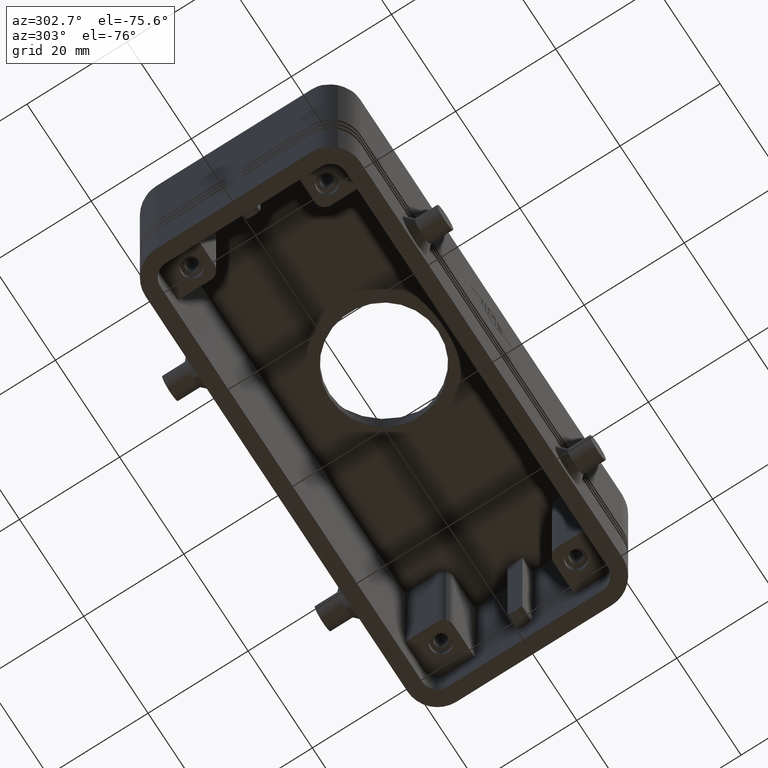
[diagram: clean part render]
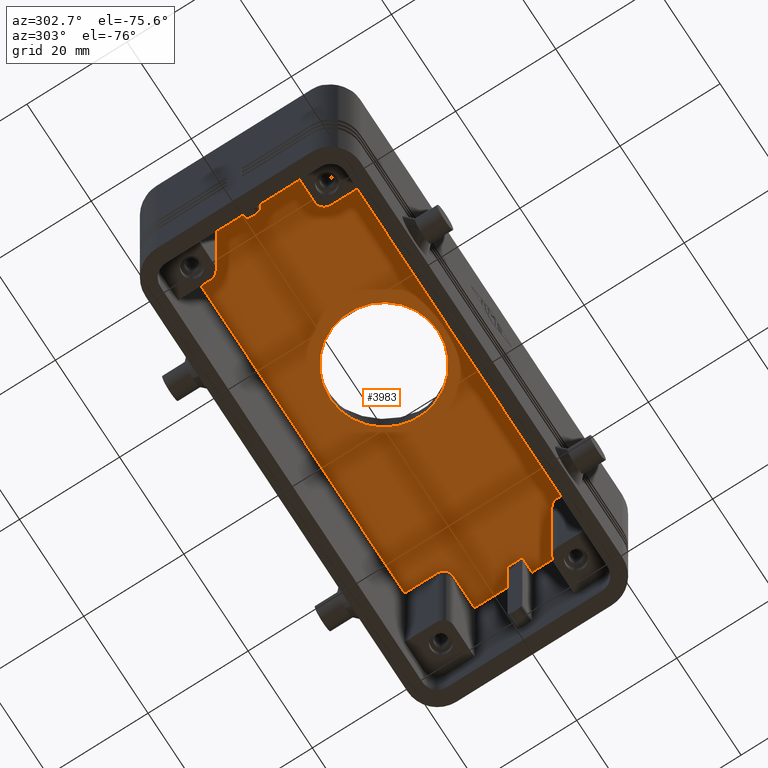
[diagram: same view with one face highlighted and labeled with its STEP entity id]
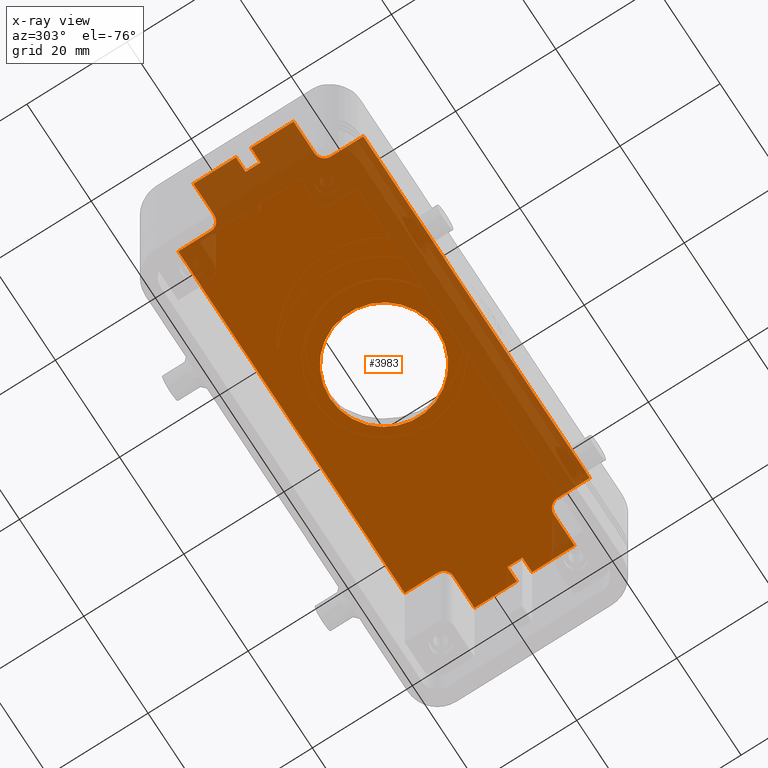
[diagram: x-ray of the same camera — body ghosted, the highlighted face saturated]
A machine part, auxiliary view. The second image highlights one B-rep face of the part: STEP entity #3983.
The next image is the same camera in x-ray: the body ghosted, the highlighted face saturated — about 27% of this face is hidden behind the body in this view.
In plain terms, the highlighted planar face has unit normal (0, 0, 1).
Its self-contained STEP definition (entity closure, byte-faithful):
#1688=CARTESIAN_POINT('',(35.835786437626908,10.585786437626910,41.999999999999993));
#1689=VERTEX_POINT('',#1688);
#1705=CARTESIAN_POINT('',(37.250000000000007,10.0,41.999999999999993));
#1706=VERTEX_POINT('',#1705);
#1713=CARTESIAN_POINT('',(37.250000000000007,12.0,41.999999999999993));
#1714=DIRECTION('',(0.0,0.0,1.0));
#1715=DIRECTION('',(-0.707106781186548,-0.707106781186547,0.0));
#1716=AXIS2_PLACEMENT_3D('',#1713,#1714,#1715);
#1717=CIRCLE('',#1716,2.0);
#1718=EDGE_CURVE('',#1706,#1689,#1717,.F.);
#1728=CARTESIAN_POINT('',(-35.835786437626908,10.585786437626908,41.999999999999993));
#1729=VERTEX_POINT('',#1728);
#1738=CARTESIAN_POINT('',(-37.250000000000014,10.0,42.000000000000021));
#1739=VERTEX_POINT('',#1738);
#1740=CARTESIAN_POINT('',(-37.250000000000007,12.0,41.999999999999993));
#1741=DIRECTION('',(0.0,0.0,1.0));
#1742=DIRECTION('',(0.707106781186548,-0.707106781186547,0.0));
#1743=AXIS2_PLACEMENT_3D('',#1740,#1741,#1742);
#1744=CIRCLE('',#1743,2.0);
#1745=EDGE_CURVE('',#1729,#1739,#1744,.F.);
#1770=CARTESIAN_POINT('',(35.835786437626908,-10.585786437626910,41.999999999999993));
#1771=VERTEX_POINT('',#1770);
#1780=CARTESIAN_POINT('',(37.250000000000007,-10.0,41.999999999999993));
#1781=VERTEX_POINT('',#1780);
#1782=CARTESIAN_POINT('',(37.250000000000007,-12.0,41.999999999999993));
#1783=DIRECTION('',(0.0,0.0,1.0));
#1784=DIRECTION('',(-0.707106781186548,0.707106781186547,0.0));
#1785=AXIS2_PLACEMENT_3D('',#1782,#1783,#1784);
#1786=CIRCLE('',#1785,2.0);
#1787=EDGE_CURVE('',#1771,#1781,#1786,.F.);
#1814=CARTESIAN_POINT('',(-35.835786437626908,-10.585786437626908,41.999999999999993));
#1815=VERTEX_POINT('',#1814);
#1831=CARTESIAN_POINT('',(-37.250000000000014,-10.0,42.000000000000021));
#1832=VERTEX_POINT('',#1831);
#1839=CARTESIAN_POINT('',(-37.250000000000007,-12.0,41.999999999999993));
#1840=DIRECTION('',(0.0,0.0,1.0));
#1841=DIRECTION('',(0.707106781186548,0.707106781186547,0.0));
#1842=AXIS2_PLACEMENT_3D('',#1839,#1840,#1841);
#1843=CIRCLE('',#1842,2.0);
#1844=EDGE_CURVE('',#1832,#1815,#1843,.F.);
#3172=CARTESIAN_POINT('',(1.323799E-015,10.809999999999999,41.999999999999993));
#3173=VERTEX_POINT('',#3172);
#3189=CARTESIAN_POINT('',(1.323799E-015,-10.809999999999999,41.999999999999993));
#3190=VERTEX_POINT('',#3189);
#3197=CARTESIAN_POINT('',(0.0,-4.440892E-016,41.999999999999993));
#3198=DIRECTION('',(0.0,0.0,1.0));
#3199=DIRECTION('',(0.0,1.0,0.0));
#3200=AXIS2_PLACEMENT_3D('',#3197,#3198,#3199);
#3201=CIRCLE('',#3200,10.809999999999999);
#3202=EDGE_CURVE('',#3173,#3190,#3201,.T.);
#3418=CARTESIAN_POINT('',(40.750000000000000,-1.499999999999991,41.999999999999993));
#3419=VERTEX_POINT('',#3418);
#3420=CARTESIAN_POINT('',(43.750000000000000,-1.499999999999991,41.999999999999993));
#3421=VERTEX_POINT('',#3420);
#3422=CARTESIAN_POINT('',(40.750000000000000,-1.499999999999991,41.999999999999993));
#3423=DIRECTION('',(1.0,0.0,0.0));
#3424=VECTOR('',#3423,3.0);
#3425=LINE('',#3422,#3424);
#3426=EDGE_CURVE('',#3419,#3421,#3425,.T.);
#3458=CARTESIAN_POINT('',(40.750000000000000,1.499999999999991,41.999999999999993));
#3459=VERTEX_POINT('',#3458);
#3460=CARTESIAN_POINT('',(40.750000000000000,1.499999999999991,41.999999999999993));
#3461=DIRECTION('',(0.0,-1.0,0.0));
#3462=VECTOR('',#3461,2.999999999999982);
#3463=LINE('',#3460,#3462);
#3464=EDGE_CURVE('',#3459,#3419,#3463,.T.);
#3490=CARTESIAN_POINT('',(43.750000000000000,1.499999999999991,41.999999999999993));
#3491=VERTEX_POINT('',#3490);
#3492=CARTESIAN_POINT('',(43.750000000000000,1.499999999999991,41.999999999999993));
#3493=DIRECTION('',(-1.0,0.0,0.0));
#3494=VECTOR('',#3493,3.0);
#3495=LINE('',#3492,#3494);
#3496=EDGE_CURVE('',#3491,#3459,#3495,.T.);
#3563=CARTESIAN_POINT('',(43.750000000000000,10.0,41.999999999999993));
#3564=VERTEX_POINT('',#3563);
#3565=CARTESIAN_POINT('',(43.750000000000000,10.0,41.999999999999993));
#3566=DIRECTION('',(0.0,-1.0,0.0));
#3567=VECTOR('',#3566,8.500000000000009);
#3568=LINE('',#3565,#3567);
#3569=EDGE_CURVE('',#3564,#3491,#3568,.T.);
#3619=CARTESIAN_POINT('',(43.750000000000000,-10.0,41.999999999999993));
#3620=VERTEX_POINT('',#3619);
#3627=CARTESIAN_POINT('',(43.750000000000000,-1.499999999999991,41.999999999999993));
#3628=DIRECTION('',(0.0,-1.0,0.0));
#3629=VECTOR('',#3628,8.500000000000009);
#3630=LINE('',#3627,#3629);
#3631=EDGE_CURVE('',#3421,#3620,#3630,.T.);
#3641=CARTESIAN_POINT('',(-40.750000000000000,1.499999999999991,41.999999999999993));
#3642=VERTEX_POINT('',#3641);
#3643=CARTESIAN_POINT('',(-43.750000000000000,1.499999999999991,41.999999999999993));
#3644=VERTEX_POINT('',#3643);
#3645=CARTESIAN_POINT('',(-40.750000000000000,1.499999999999991,41.999999999999993));
#3646=DIRECTION('',(-1.0,0.0,0.0));
#3647=VECTOR('',#3646,3.0);
#3648=LINE('',#3645,#3647);
#3649=EDGE_CURVE('',#3642,#3644,#3648,.T.);
#3714=CARTESIAN_POINT('',(-43.750000000000000,-1.499999999999991,41.999999999999993));
#3715=VERTEX_POINT('',#3714);
#3716=CARTESIAN_POINT('',(-40.750000000000000,-1.499999999999991,41.999999999999993));
#3717=VERTEX_POINT('',#3716);
#3718=CARTESIAN_POINT('',(-43.750000000000000,-1.499999999999991,41.999999999999993));
#3719=DIRECTION('',(1.0,0.0,0.0));
#3720=VECTOR('',#3719,3.0);
#3721=LINE('',#3718,#3720);
#3722=EDGE_CURVE('',#3715,#3717,#3721,.T.);
#3745=CARTESIAN_POINT('',(-40.750000000000000,-1.499999999999991,41.999999999999993));
#3746=DIRECTION('',(0.0,1.0,0.0));
#3747=VECTOR('',#3746,2.999999999999982);
#3748=LINE('',#3745,#3747);
#3749=EDGE_CURVE('',#3717,#3642,#3748,.T.);
#3834=CARTESIAN_POINT('',(0.0,18.500000000000000,41.999999999999993));
#3835=DIRECTION('',(0.0,0.0,1.0));
#3836=DIRECTION('',(1.0,0.0,0.0));
#3837=AXIS2_PLACEMENT_3D('',#3834,#3835,#3836);
#3838=PLANE('',#3837);
#3839=ORIENTED_EDGE('',*,*,#3426,.T.);
#3840=ORIENTED_EDGE('',*,*,#3631,.T.);
#3841=CARTESIAN_POINT('',(37.250000000000007,-10.0,41.999999999999993));
#3842=DIRECTION('',(1.0,0.0,0.0));
#3843=VECTOR('',#3842,6.499999999999993);
#3844=LINE('',#3841,#3843);
#3845=EDGE_CURVE('',#1781,#3620,#3844,.T.);
#3846=ORIENTED_EDGE('',*,*,#3845,.F.);
#3847=ORIENTED_EDGE('',*,*,#1787,.F.);
#3848=CARTESIAN_POINT('',(35.250000000000000,-12.0,41.999999999999993));
#3849=VERTEX_POINT('',#3848);
#3850=CARTESIAN_POINT('',(37.250000000000007,-12.0,41.999999999999993));
#3851=DIRECTION('',(0.0,0.0,1.0));
#3852=DIRECTION('',(-0.707106781186548,0.707106781186547,0.0));
#3853=AXIS2_PLACEMENT_3D('',#3850,#3851,#3852);
#3854=CIRCLE('',#3853,2.0);
#3855=EDGE_CURVE('',#3849,#1771,#3854,.F.);
#3856=ORIENTED_EDGE('',*,*,#3855,.F.);
#3857=CARTESIAN_POINT('',(35.250000000000000,-18.500000000000000,41.999999999999993));
#3858=VERTEX_POINT('',#3857);
#3859=CARTESIAN_POINT('',(35.250000000000000,-18.500000000000000,41.999999999999993));
#3860=DIRECTION('',(0.0,1.0,0.0));
#3861=VECTOR('',#3860,6.500000000000000);
#3862=LINE('',#3859,#3861);
#3863=EDGE_CURVE('',#3858,#3849,#3862,.T.);
#3864=ORIENTED_EDGE('',*,*,#3863,.F.);
#3865=CARTESIAN_POINT('',(-35.250000000000000,-18.500000000000000,41.999999999999993));
#3866=VERTEX_POINT('',#3865);
#3867=CARTESIAN_POINT('',(-35.250000000000000,-18.500000000000000,41.999999999999993));
#3868=DIRECTION('',(1.0,0.0,0.0));
#3869=VECTOR('',#3868,70.500000000000000);
#3870=LINE('',#3867,#3869);
#3871=EDGE_CURVE('',#3866,#3858,#3870,.T.);
#3872=ORIENTED_EDGE('',*,*,#3871,.F.);
#3873=CARTESIAN_POINT('',(-35.250000000000000,-12.0,41.999999999999993));
#3874=VERTEX_POINT('',#3873);
#3875=CARTESIAN_POINT('',(-35.250000000000000,-12.0,41.999999999999993));
#3876=DIRECTION('',(0.0,-1.0,0.0));
#3877=VECTOR('',#3876,6.500000000000000);
#3878=LINE('',#3875,#3877);
#3879=EDGE_CURVE('',#3874,#3866,#3878,.T.);
#3880=ORIENTED_EDGE('',*,*,#3879,.F.);
#3881=CARTESIAN_POINT('',(-37.250000000000007,-12.0,41.999999999999993));
#3882=DIRECTION('',(0.0,0.0,1.0));
#3883=DIRECTION('',(0.707106781186548,0.707106781186547,0.0));
#3884=AXIS2_PLACEMENT_3D('',#3881,#3882,#3883);
#3885=CIRCLE('',#3884,2.0);
#3886=EDGE_CURVE('',#1815,#3874,#3885,.F.);
#3887=ORIENTED_EDGE('',*,*,#3886,.F.);
#3888=ORIENTED_EDGE('',*,*,#1844,.F.);
#3889=CARTESIAN_POINT('',(-43.749999999999986,-10.0,42.000000000000021));
#3890=VERTEX_POINT('',#3889);
#3891=CARTESIAN_POINT('',(-43.749999999999986,-10.0,42.000000000000021));
#3892=DIRECTION('',(1.0,0.0,0.0));
#3893=VECTOR('',#3892,6.499999999999972);
#3894=LINE('',#3891,#3893);
#3895=EDGE_CURVE('',#3890,#1832,#3894,.T.);
#3896=ORIENTED_EDGE('',*,*,#3895,.F.);
#3897=CARTESIAN_POINT('',(-43.750000000000000,-1.499999999999991,41.999999999999993));
#3898=DIRECTION('',(0.0,-1.0,0.0));
#3899=VECTOR('',#3898,8.500000000000009);
#3900=LINE('',#3897,#3899);
#3901=EDGE_CURVE('',#3715,#3890,#3900,.T.);
#3902=ORIENTED_EDGE('',*,*,#3901,.F.);
#3903=ORIENTED_EDGE('',*,*,#3722,.T.);
#3904=ORIENTED_EDGE('',*,*,#3749,.T.);
#3905=ORIENTED_EDGE('',*,*,#3649,.T.);
#3906=CARTESIAN_POINT('',(-43.749999999999986,10.0,42.000000000000021));
#3907=VERTEX_POINT('',#3906);
#3908=CARTESIAN_POINT('',(-43.749999999999986,10.0,42.000000000000021));
#3909=DIRECTION('',(0.0,-1.0,0.0));
#3910=VECTOR('',#3909,8.500000000000009);
#3911=LINE('',#3908,#3910);
#3912=EDGE_CURVE('',#3907,#3644,#3911,.T.);
#3913=ORIENTED_EDGE('',*,*,#3912,.F.);
#3914=CARTESIAN_POINT('',(-37.250000000000014,10.0,42.000000000000021));
#3915=DIRECTION('',(-1.0,0.0,0.0));
#3916=VECTOR('',#3915,6.499999999999972);
#3917=LINE('',#3914,#3916);
#3918=EDGE_CURVE('',#1739,#3907,#3917,.T.);
#3919=ORIENTED_EDGE('',*,*,#3918,.F.);
#3920=ORIENTED_EDGE('',*,*,#1745,.F.);
#3921=CARTESIAN_POINT('',(-35.250000000000000,12.0,41.999999999999993));
#3922=VERTEX_POINT('',#3921);
#3923=CARTESIAN_POINT('',(-37.250000000000007,12.0,41.999999999999993));
#3924=DIRECTION('',(0.0,0.0,1.0));
#3925=DIRECTION('',(0.707106781186548,-0.707106781186547,0.0));
#3926=AXIS2_PLACEMENT_3D('',#3923,#3924,#3925);
#3927=CIRCLE('',#3926,2.0);
#3928=EDGE_CURVE('',#3922,#1729,#3927,.F.);
#3929=ORIENTED_EDGE('',*,*,#3928,.F.);
#3930=CARTESIAN_POINT('',(-35.250000000000000,18.500000000000000,41.999999999999993));
#3931=VERTEX_POINT('',#3930);
#3932=CARTESIAN_POINT('',(-35.250000000000000,18.500000000000000,41.999999999999993));
#3933=DIRECTION('',(0.0,-1.0,0.0));
#3934=VECTOR('',#3933,6.500000000000000);
#3935=LINE('',#3932,#3934);
#3936=EDGE_CURVE('',#3931,#3922,#3935,.T.);
#3937=ORIENTED_EDGE('',*,*,#3936,.F.);
#3938=CARTESIAN_POINT('',(35.250000000000000,18.500000000000000,41.999999999999993));
#3939=VERTEX_POINT('',#3938);
#3940=CARTESIAN_POINT('',(-35.250000000000000,18.500000000000000,41.999999999999993));
#3941=DIRECTION('',(1.0,0.0,0.0));
#3942=VECTOR('',#3941,70.500000000000000);
#3943=LINE('',#3940,#3942);
#3944=EDGE_CURVE('',#3931,#3939,#3943,.T.);
#3945=ORIENTED_EDGE('',*,*,#3944,.T.);
#3946=CARTESIAN_POINT('',(35.250000000000000,12.0,41.999999999999993));
#3947=VERTEX_POINT('',#3946);
#3948=CARTESIAN_POINT('',(35.250000000000000,12.0,41.999999999999993));
#3949=DIRECTION('',(0.0,1.0,0.0));
#3950=VECTOR('',#3949,6.500000000000000);
#3951=LINE('',#3948,#3950);
#3952=EDGE_CURVE('',#3947,#3939,#3951,.T.);
#3953=ORIENTED_EDGE('',*,*,#3952,.F.);
#3954=CARTESIAN_POINT('',(37.250000000000007,12.0,41.999999999999993));
#3955=DIRECTION('',(0.0,0.0,1.0));
#3956=DIRECTION('',(-0.707106781186548,-0.707106781186547,0.0));
#3957=AXIS2_PLACEMENT_3D('',#3954,#3955,#3956);
#3958=CIRCLE('',#3957,2.0);
#3959=EDGE_CURVE('',#1689,#3947,#3958,.F.);
#3960=ORIENTED_EDGE('',*,*,#3959,.F.);
#3961=ORIENTED_EDGE('',*,*,#1718,.F.);
#3962=CARTESIAN_POINT('',(43.750000000000000,10.0,41.999999999999993));
#3963=DIRECTION('',(-1.0,0.0,0.0));
#3964=VECTOR('',#3963,6.499999999999993);
#3965=LINE('',#3962,#3964);
#3966=EDGE_CURVE('',#3564,#1706,#3965,.T.);
#3967=ORIENTED_EDGE('',*,*,#3966,.F.);
#3968=ORIENTED_EDGE('',*,*,#3569,.T.);
#3969=ORIENTED_EDGE('',*,*,#3496,.T.);
#3970=ORIENTED_EDGE('',*,*,#3464,.T.);
#3971=EDGE_LOOP('',(#3839,#3840,#3846,#3847,#3856,#3864,#3872,#3880,#3887,#3888,#3896,#3902,#3903,#3904,#3905,#3913,#3919,#3920,#3929,#3937,#3945,#3953,#3960,#3961,#3967,#3968,#3969,#3970));
#3972=FACE_OUTER_BOUND('',#3971,.T.);
#3973=CARTESIAN_POINT('',(0.0,-4.440892E-016,41.999999999999993));
#3974=DIRECTION('',(0.0,0.0,1.0));
#3975=DIRECTION('',(0.0,1.0,0.0));
#3976=AXIS2_PLACEMENT_3D('',#3973,#3974,#3975);
#3977=CIRCLE('',#3976,10.809999999999999);
#3978=EDGE_CURVE('',#3190,#3173,#3977,.T.);
#3979=ORIENTED_EDGE('',*,*,#3978,.T.);
#3980=ORIENTED_EDGE('',*,*,#3202,.T.);
#3981=EDGE_LOOP('',(#3979,#3980));
#3982=FACE_BOUND('',#3981,.T.);
#3983=ADVANCED_FACE('',(#3972,#3982),#3838,.F.);